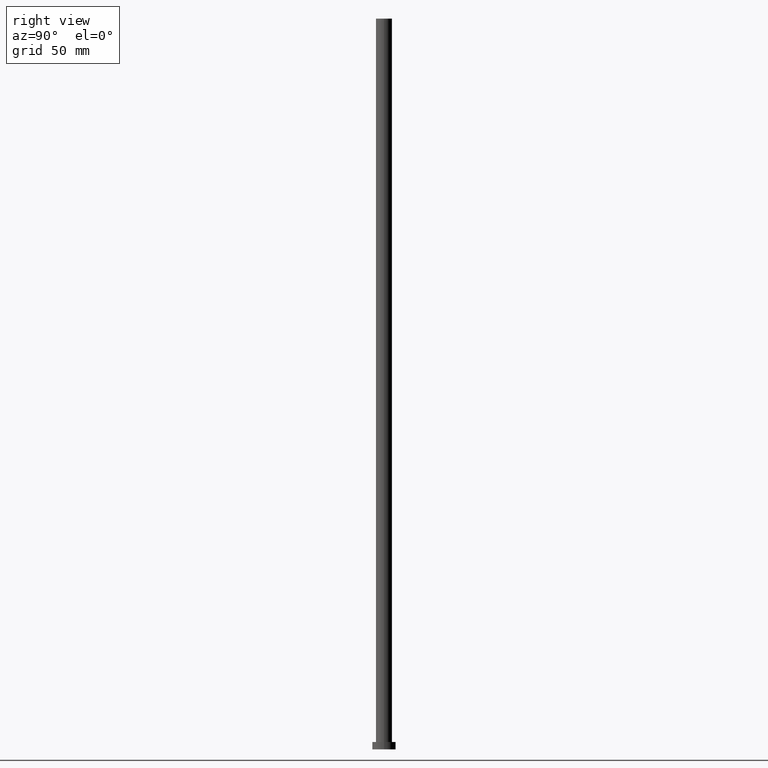
[diagram: clean part render]
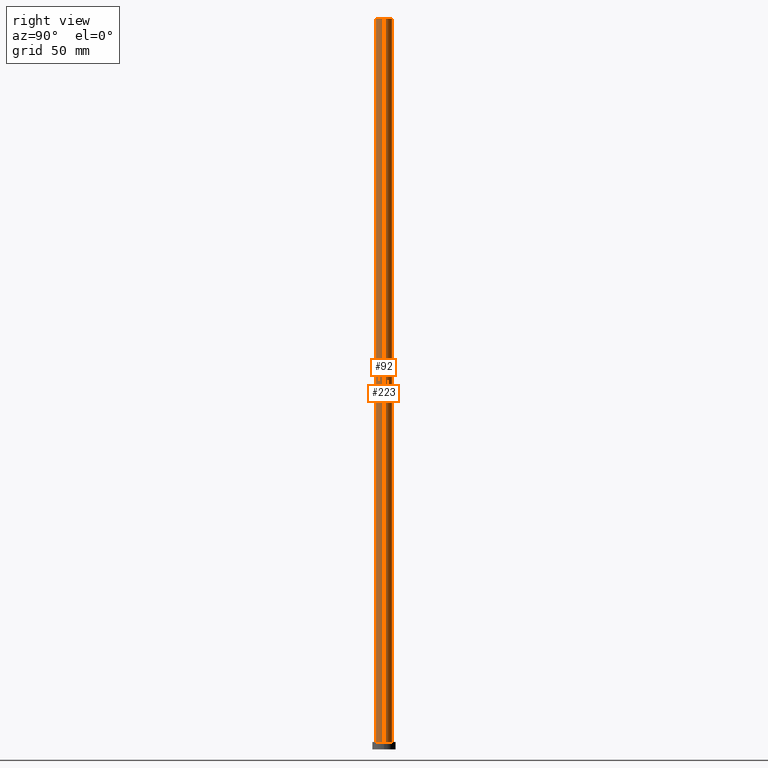
[diagram: same view with one multi-face feature highlighted, each face labeled with its STEP entity id]
A machine part, right view. The highlighted faces form ONE feature: a constant-radius fillet chain: 2 tangent blend faces with common blend radius 5.5 mm. The faces share edges in the B-rep.
Their STEP definitions:
[1] entity #223 (Cylinder):
#1 = DIRECTION ( 'NONE',  ( -1.000000000000000000, 0.000000000000000000, 0.000000000000000000 ) ) ;
#2 = CIRCLE ( 'NONE', #197, 5.500000000000000000 ) ;
#5 = DIRECTION ( 'NONE',  ( 1.000000000000000000, 0.000000000000000000, 0.000000000000000000 ) ) ;
#7 = VECTOR ( 'NONE', #45, 1000.000000000000000 ) ;
#10 = DIRECTION ( 'NONE',  ( 0.000000000000000000, 0.000000000000000000, 1.000000000000000000 ) ) ;
#14 = ORIENTED_EDGE ( 'NONE', *, *, #59, .F. ) ;
#20 = LINE ( 'NONE', #170, #157 ) ;
#23 = CARTESIAN_POINT ( 'NONE',  ( 0.000000000000000000, 0.000000000000000000, 500.0000000000000000 ) ) ;
#36 = EDGE_LOOP ( 'NONE', ( #40, #199, #182, #14 ) ) ;
#37 = CARTESIAN_POINT ( 'NONE',  ( 0.000000000000000000, 0.000000000000000000, 500.0000000000000000 ) ) ;
#40 = ORIENTED_EDGE ( 'NONE', *, *, #119, .F. ) ;
#45 = DIRECTION ( 'NONE',  ( -0.000000000000000000, -0.000000000000000000, -1.000000000000000000 ) ) ;
#53 = VERTEX_POINT ( 'NONE', #209 ) ;
#54 = AXIS2_PLACEMENT_3D ( 'NONE', #37, #236, #1 ) ;
#58 = CIRCLE ( 'NONE', #122, 5.500000000000000000 ) ;
#59 = EDGE_CURVE ( 'NONE', #180, #114, #20, .T. ) ;
#72 = EDGE_CURVE ( 'NONE', #235, #53, #132, .T. ) ;
#80 = CARTESIAN_POINT ( 'NONE',  ( 0.000000000000000000, 0.000000000000000000, 5.000000000000000000 ) ) ;
#102 = DIRECTION ( 'NONE',  ( 0.000000000000000000, 0.000000000000000000, 1.000000000000000000 ) ) ;
#103 = FACE_OUTER_BOUND ( 'NONE', #36, .T. ) ;
#114 = VERTEX_POINT ( 'NONE', #191 ) ;
#119 = EDGE_CURVE ( 'NONE', #235, #180, #2, .T. ) ;
#122 = AXIS2_PLACEMENT_3D ( 'NONE', #80, #102, #123 ) ;
#123 = DIRECTION ( 'NONE',  ( 1.000000000000000000, 0.000000000000000000, 0.000000000000000000 ) ) ;
#132 = LINE ( 'NONE', #242, #7 ) ;
#143 = DIRECTION ( 'NONE',  ( -0.000000000000000000, -0.000000000000000000, -1.000000000000000000 ) ) ;
#157 = VECTOR ( 'NONE', #143, 1000.000000000000000 ) ;
#170 = CARTESIAN_POINT ( 'NONE',  ( -5.500000000000000000, 0.000000000000000000, 500.0000000000000000 ) ) ;
#180 = VERTEX_POINT ( 'NONE', #213 ) ;
#182 = ORIENTED_EDGE ( 'NONE', *, *, #232, .T. ) ;
#191 = CARTESIAN_POINT ( 'NONE',  ( -5.500000000000000000, 0.000000000000000000, 5.000000000000000000 ) ) ;
#197 = AXIS2_PLACEMENT_3D ( 'NONE', #23, #10, #5 ) ;
#199 = ORIENTED_EDGE ( 'NONE', *, *, #72, .T. ) ;
#204 = CYLINDRICAL_SURFACE ( 'NONE', #54, 5.500000000000000000 ) ;
#207 = CARTESIAN_POINT ( 'NONE',  ( 5.500000000000000000, 6.735557395310442023E-16, 500.0000000000000000 ) ) ;
#209 = CARTESIAN_POINT ( 'NONE',  ( 5.500000000000000000, 6.735557395310442023E-16, 5.000000000000000000 ) ) ;
#213 = CARTESIAN_POINT ( 'NONE',  ( -5.500000000000000000, 0.000000000000000000, 500.0000000000000000 ) ) ;
#223 = ADVANCED_FACE ( 'NONE', ( #103 ), #204, .T. ) ;
#232 = EDGE_CURVE ( 'NONE', #53, #114, #58, .T. ) ;
#235 = VERTEX_POINT ( 'NONE', #207 ) ;
#236 = DIRECTION ( 'NONE',  ( -0.000000000000000000, -0.000000000000000000, -1.000000000000000000 ) ) ;
#242 = CARTESIAN_POINT ( 'NONE',  ( 5.500000000000000000, 6.735557395310442023E-16, 500.0000000000000000 ) ) ;
[2] entity #92 (Cylinder):
#4 = EDGE_CURVE ( 'NONE', #180, #235, #177, .T. ) ;
#7 = VECTOR ( 'NONE', #45, 1000.000000000000000 ) ;
#20 = LINE ( 'NONE', #170, #157 ) ;
#35 = EDGE_LOOP ( 'NONE', ( #99, #202, #164, #160 ) ) ;
#45 = DIRECTION ( 'NONE',  ( -0.000000000000000000, -0.000000000000000000, -1.000000000000000000 ) ) ;
#48 = CIRCLE ( 'NONE', #144, 5.500000000000000000 ) ;
#51 = EDGE_CURVE ( 'NONE', #114, #53, #48, .T. ) ;
#53 = VERTEX_POINT ( 'NONE', #209 ) ;
#59 = EDGE_CURVE ( 'NONE', #180, #114, #20, .T. ) ;
#61 = CARTESIAN_POINT ( 'NONE',  ( 0.000000000000000000, 0.000000000000000000, 500.0000000000000000 ) ) ;
#66 = FACE_OUTER_BOUND ( 'NONE', #35, .T. ) ;
#72 = EDGE_CURVE ( 'NONE', #235, #53, #132, .T. ) ;
#78 = AXIS2_PLACEMENT_3D ( 'NONE', #61, #84, #127 ) ;
#84 = DIRECTION ( 'NONE',  ( -0.000000000000000000, -0.000000000000000000, -1.000000000000000000 ) ) ;
#86 = CYLINDRICAL_SURFACE ( 'NONE', #78, 5.500000000000000000 ) ;
#92 = ADVANCED_FACE ( 'NONE', ( #66 ), #86, .T. ) ;
#99 = ORIENTED_EDGE ( 'NONE', *, *, #72, .F. ) ;
#109 = DIRECTION ( 'NONE',  ( 0.000000000000000000, 0.000000000000000000, 1.000000000000000000 ) ) ;
#114 = VERTEX_POINT ( 'NONE', #191 ) ;
#115 = AXIS2_PLACEMENT_3D ( 'NONE', #167, #241, #185 ) ;
#127 = DIRECTION ( 'NONE',  ( -1.000000000000000000, 0.000000000000000000, 0.000000000000000000 ) ) ;
#132 = LINE ( 'NONE', #242, #7 ) ;
#143 = DIRECTION ( 'NONE',  ( -0.000000000000000000, -0.000000000000000000, -1.000000000000000000 ) ) ;
#144 = AXIS2_PLACEMENT_3D ( 'NONE', #226, #109, #215 ) ;
#157 = VECTOR ( 'NONE', #143, 1000.000000000000000 ) ;
#160 = ORIENTED_EDGE ( 'NONE', *, *, #51, .T. ) ;
#164 = ORIENTED_EDGE ( 'NONE', *, *, #59, .T. ) ;
#167 = CARTESIAN_POINT ( 'NONE',  ( 0.000000000000000000, 0.000000000000000000, 500.0000000000000000 ) ) ;
#170 = CARTESIAN_POINT ( 'NONE',  ( -5.500000000000000000, 0.000000000000000000, 500.0000000000000000 ) ) ;
#177 = CIRCLE ( 'NONE', #115, 5.500000000000000000 ) ;
#180 = VERTEX_POINT ( 'NONE', #213 ) ;
#185 = DIRECTION ( 'NONE',  ( 1.000000000000000000, 0.000000000000000000, 0.000000000000000000 ) ) ;
#191 = CARTESIAN_POINT ( 'NONE',  ( -5.500000000000000000, 0.000000000000000000, 5.000000000000000000 ) ) ;
#202 = ORIENTED_EDGE ( 'NONE', *, *, #4, .F. ) ;
#207 = CARTESIAN_POINT ( 'NONE',  ( 5.500000000000000000, 6.735557395310442023E-16, 500.0000000000000000 ) ) ;
#209 = CARTESIAN_POINT ( 'NONE',  ( 5.500000000000000000, 6.735557395310442023E-16, 5.000000000000000000 ) ) ;
#213 = CARTESIAN_POINT ( 'NONE',  ( -5.500000000000000000, 0.000000000000000000, 500.0000000000000000 ) ) ;
#215 = DIRECTION ( 'NONE',  ( 1.000000000000000000, 0.000000000000000000, 0.000000000000000000 ) ) ;
#226 = CARTESIAN_POINT ( 'NONE',  ( 0.000000000000000000, 0.000000000000000000, 5.000000000000000000 ) ) ;
#235 = VERTEX_POINT ( 'NONE', #207 ) ;
#241 = DIRECTION ( 'NONE',  ( 0.000000000000000000, 0.000000000000000000, 1.000000000000000000 ) ) ;
#242 = CARTESIAN_POINT ( 'NONE',  ( 5.500000000000000000, 6.735557395310442023E-16, 500.0000000000000000 ) ) ;